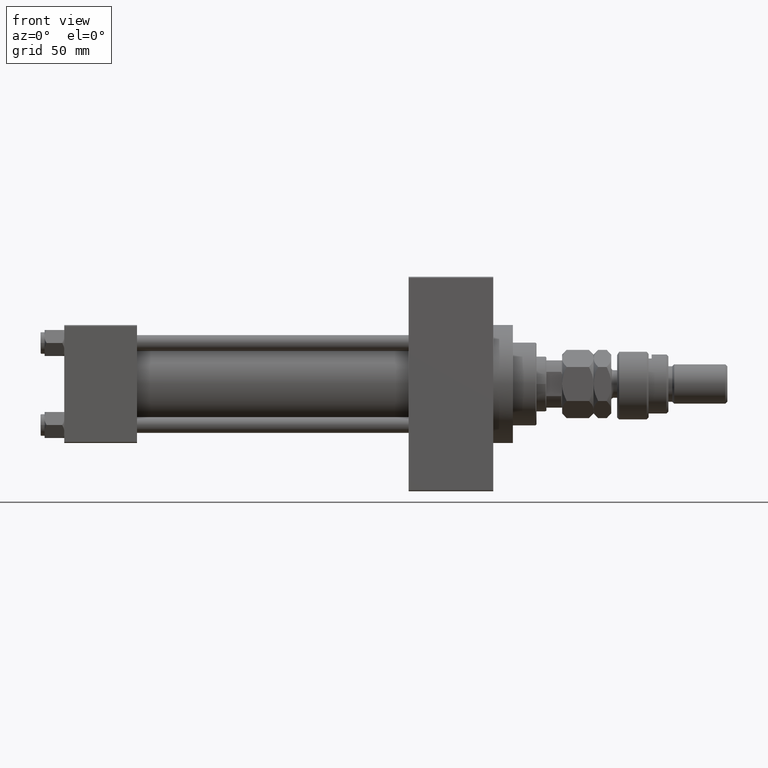
[diagram: clean part render]
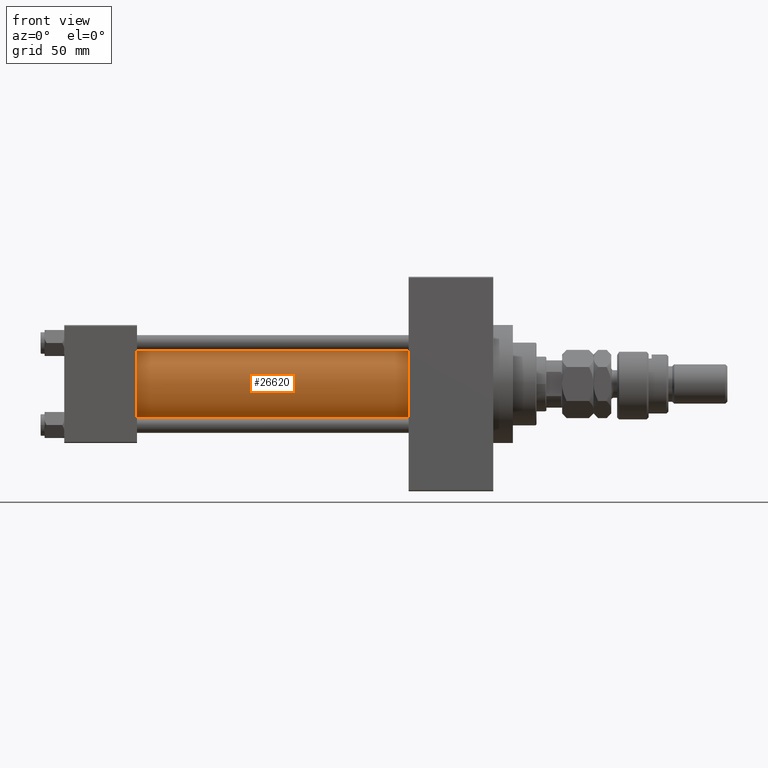
[diagram: same view with one face highlighted and labeled with its STEP entity id]
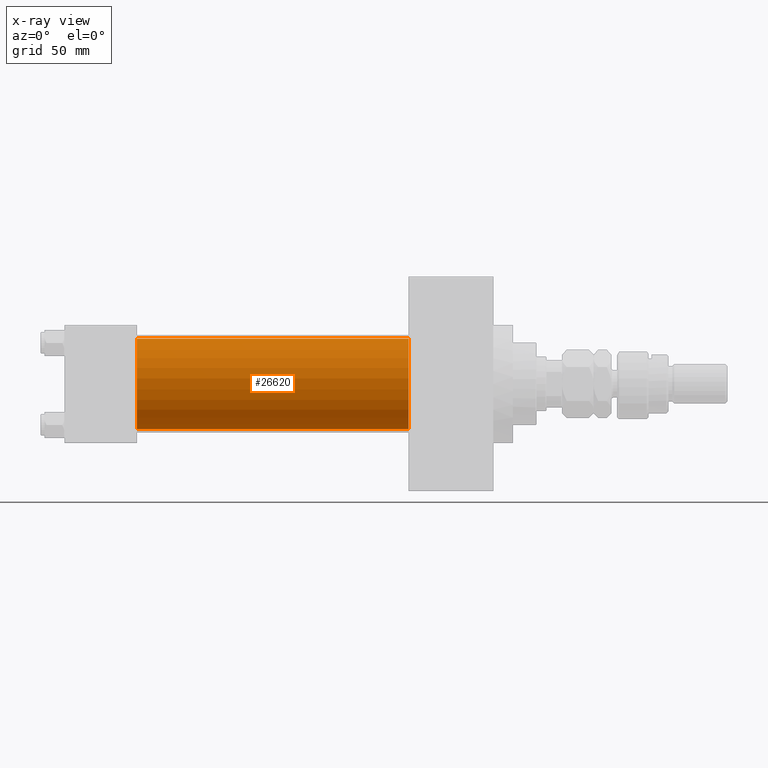
[diagram: x-ray of the same camera — body ghosted, the highlighted face saturated]
A machine part, front view. The second image highlights one B-rep face of the part: STEP entity #26620.
The next image is the same camera in x-ray: the body ghosted, the highlighted face saturated — about 0% of this face is hidden behind the body in this view.
In plain terms, the highlighted cylindrical surface (partial cylindrical patch) has radius 23 mm, axis along (-1, -0, -0).
Its self-contained STEP definition (entity closure, byte-faithful):
#190 = CIRCLE ( 'NONE', #29831, 23.00000000000000000 ) ;
#4567 = DIRECTION ( 'NONE',  ( 1.000000000000000000, 0.000000000000000000, 0.000000000000000000 ) ) ;
#8219 = AXIS2_PLACEMENT_3D ( 'NONE', #31955, #40160, #32201 ) ;
#8380 = ORIENTED_EDGE ( 'NONE', *, *, #42124, .T. ) ;
#10718 = EDGE_CURVE ( 'NONE', #29614, #21095, #190, .T. ) ;
#11114 = ORIENTED_EDGE ( 'NONE', *, *, #30481, .T. ) ;
#11609 = CARTESIAN_POINT ( 'NONE',  ( 37.00000000000000711, -2.602085213965210642E-15, 23.00000000000000000 ) ) ;
#13061 = CARTESIAN_POINT ( 'NONE',  ( 175.0000000000000284, -2.602085213965210642E-15, 0.000000000000000000 ) ) ;
#16051 = CARTESIAN_POINT ( 'NONE',  ( 37.00000000000000711, 2.146024240737016609E-16, -23.00000000000000000 ) ) ;
#18936 = CARTESIAN_POINT ( 'NONE',  ( 175.0000000000000284, 2.146024240737016609E-16, -23.00000000000000000 ) ) ;
#19579 = VECTOR ( 'NONE', #40884, 1000.000000000000000 ) ;
#20122 = DIRECTION ( 'NONE',  ( 0.000000000000000000, 0.000000000000000000, 1.000000000000000000 ) ) ;
#20258 = CARTESIAN_POINT ( 'NONE',  ( 175.0000000000000284, 2.146024240737016609E-16, -23.00000000000000000 ) ) ;
#21095 = VERTEX_POINT ( 'NONE', #18936 ) ;
#23559 = ORIENTED_EDGE ( 'NONE', *, *, #10718, .F. ) ;
#24055 = LINE ( 'NONE', #27780, #52442 ) ;
#24265 = CYLINDRICAL_SURFACE ( 'NONE', #8219, 23.00000000000000000 ) ;
#26620 = ADVANCED_FACE ( 'NONE', ( #40667 ), #24265, .T. ) ;
#27694 = CARTESIAN_POINT ( 'NONE',  ( 175.0000000000000284, -2.602085213965210642E-15, 23.00000000000000000 ) ) ;
#27780 = CARTESIAN_POINT ( 'NONE',  ( 175.0000000000000284, -2.602085213965210642E-15, 23.00000000000000000 ) ) ;
#28802 = DIRECTION ( 'NONE',  ( -1.000000000000000000, -0.000000000000000000, -0.000000000000000000 ) ) ;
#29614 = VERTEX_POINT ( 'NONE', #27694 ) ;
#29831 = AXIS2_PLACEMENT_3D ( 'NONE', #13061, #4567, #36647 ) ;
#30481 = EDGE_CURVE ( 'NONE', #41949, #43454, #33749, .T. ) ;
#31955 = CARTESIAN_POINT ( 'NONE',  ( 175.0000000000000284, -2.602085213965210642E-15, 0.000000000000000000 ) ) ;
#32201 = DIRECTION ( 'NONE',  ( 0.000000000000000000, 0.000000000000000000, 1.000000000000000000 ) ) ;
#32942 = LINE ( 'NONE', #20258, #19579 ) ;
#33749 = CIRCLE ( 'NONE', #49841, 23.00000000000000000 ) ;
#36647 = DIRECTION ( 'NONE',  ( 0.000000000000000000, 0.000000000000000000, -1.000000000000000000 ) ) ;
#40160 = DIRECTION ( 'NONE',  ( -1.000000000000000000, -0.000000000000000000, -0.000000000000000000 ) ) ;
#40667 = FACE_OUTER_BOUND ( 'NONE', #49691, .T. ) ;
#40884 = DIRECTION ( 'NONE',  ( -1.000000000000000000, -0.000000000000000000, -0.000000000000000000 ) ) ;
#40919 = ORIENTED_EDGE ( 'NONE', *, *, #46008, .F. ) ;
#41949 = VERTEX_POINT ( 'NONE', #11609 ) ;
#42124 = EDGE_CURVE ( 'NONE', #29614, #41949, #24055, .T. ) ;
#43454 = VERTEX_POINT ( 'NONE', #16051 ) ;
#46008 = EDGE_CURVE ( 'NONE', #21095, #43454, #32942, .T. ) ;
#49691 = EDGE_LOOP ( 'NONE', ( #40919, #23559, #8380, #11114 ) ) ;
#49841 = AXIS2_PLACEMENT_3D ( 'NONE', #51653, #52438, #20122 ) ;
#51653 = CARTESIAN_POINT ( 'NONE',  ( 37.00000000000000711, -2.602085213965210642E-15, 0.000000000000000000 ) ) ;
#52438 = DIRECTION ( 'NONE',  ( 1.000000000000000000, -0.000000000000000000, 0.000000000000000000 ) ) ;
#52442 = VECTOR ( 'NONE', #28802, 1000.000000000000000 ) ;